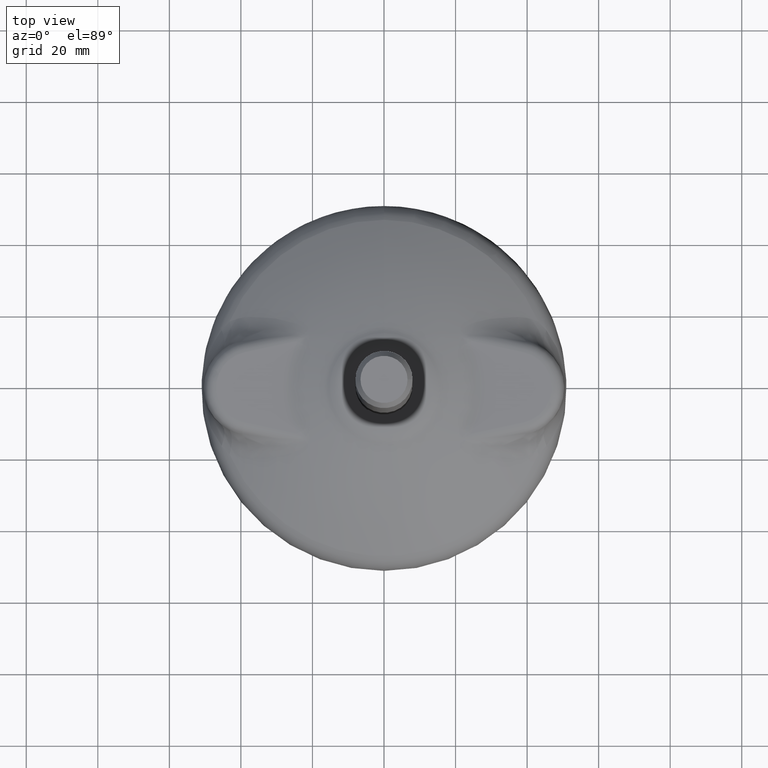
[diagram: clean part render]
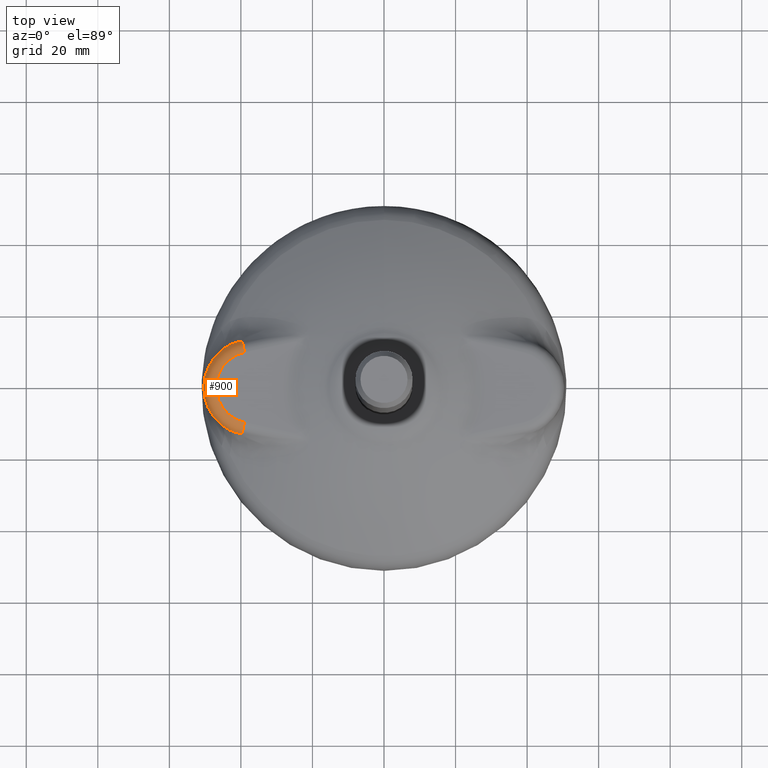
[diagram: same view with one face highlighted and labeled with its STEP entity id]
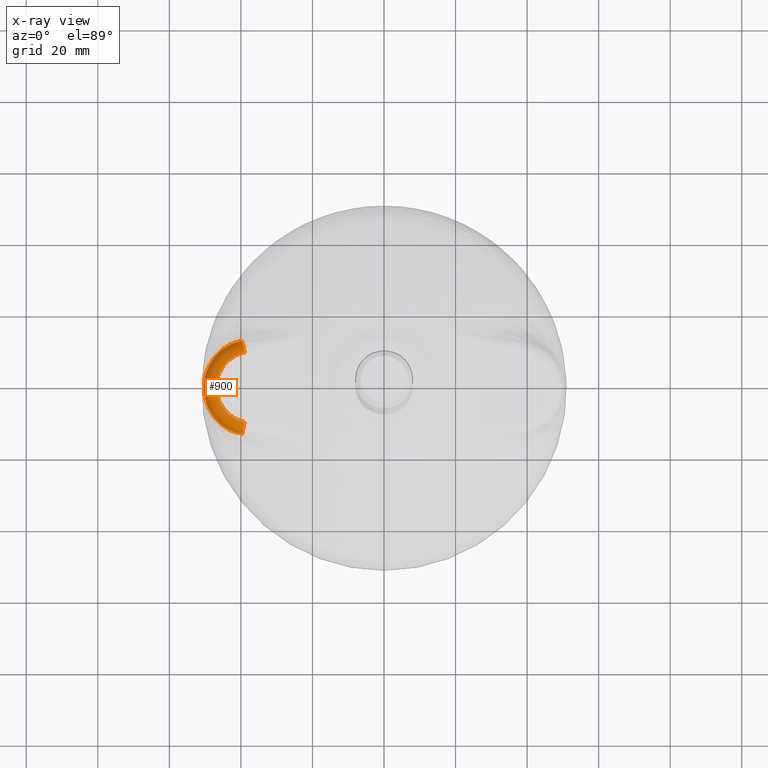
[diagram: x-ray of the same camera — body ghosted, the highlighted face saturated]
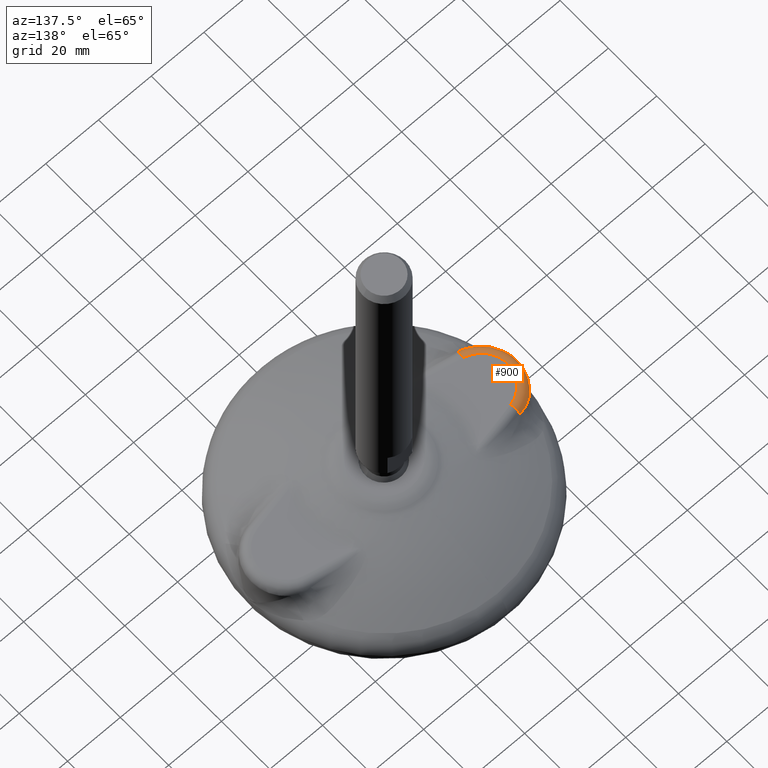
[diagram: same view with one face highlighted and labeled with its STEP entity id]
A machine part, top view. The second image highlights one B-rep face of the part: STEP entity #900.
The next image is the same camera in x-ray: the body ghosted, the highlighted face saturated — about 0% of this face is hidden behind the body in this view.
A second angle (auxiliary view) of the same face is appended — the face is thin or edge-on in the first view.
In plain terms, the highlighted toroidal blend (fillet) surface has major radius 9.9975 mm and minor (blend) radius 3.5 mm.
Its self-contained STEP definition (entity closure, byte-faithful):
#36=TOROIDAL_SURFACE('',#997,9.99751007502379,3.5);
#55=B_SPLINE_CURVE_WITH_KNOTS('',3,(#2142,#2143,#2144,#2145,#2146,#2147,
#2148,#2149),.UNSPECIFIED.,.F.,.F.,(4,2,2,4),(0.,0.500000000000003,0.750000000000001,
1.),.UNSPECIFIED.);
#56=B_SPLINE_CURVE_WITH_KNOTS('',3,(#2150,#2151,#2152,#2153,#2154,#2155,
#2156,#2157,#2158,#2159,#2160,#2161,#2162),.UNSPECIFIED.,.F.,.F.,(4,3,3,
3,4),(0.,0.275275861480388,0.556591254268268,0.845321846808826,1.),
 .UNSPECIFIED.);
#57=B_SPLINE_CURVE_WITH_KNOTS('',3,(#2164,#2165,#2166,#2167,#2168,#2169,
#2170,#2171,#2172,#2173,#2174,#2175,#2176),.UNSPECIFIED.,.F.,.F.,(4,3,3,
3,4),(0.,0.288180764930574,0.571541113506251,0.845720962163743,1.),
 .UNSPECIFIED.);
#58=B_SPLINE_CURVE_WITH_KNOTS('',3,(#2177,#2178,#2179,#2180,#2181,#2182,
#2183,#2184),.UNSPECIFIED.,.F.,.F.,(4,2,2,4),(0.,0.25,0.5,1.),
 .UNSPECIFIED.);
#151=FACE_OUTER_BOUND('',#217,.T.);
#217=EDGE_LOOP('',(#578,#579,#580,#581,#582,#583,#584,#585));
#281=CIRCLE('',#990,9.99751007502379);
#282=CIRCLE('',#992,3.5);
#283=CIRCLE('',#994,3.5);
#284=CIRCLE('',#996,13.4953779695906);
#354=VERTEX_POINT('',#1373);
#357=VERTEX_POINT('',#1378);
#358=VERTEX_POINT('',#1382);
#359=VERTEX_POINT('',#1623);
#360=VERTEX_POINT('',#1879);
#361=VERTEX_POINT('',#1880);
#363=VERTEX_POINT('',#2141);
#364=VERTEX_POINT('',#2163);
#438=EDGE_CURVE('',#357,#354,#281,.T.);
#440=EDGE_CURVE('',#357,#358,#282,.T.);
#441=EDGE_CURVE('',#354,#359,#283,.T.);
#443=EDGE_CURVE('',#360,#361,#284,.T.);
#446=EDGE_CURVE('',#358,#363,#55,.T.);
#447=EDGE_CURVE('',#363,#361,#56,.T.);
#448=EDGE_CURVE('',#360,#364,#57,.T.);
#449=EDGE_CURVE('',#364,#359,#58,.T.);
#578=ORIENTED_EDGE('',*,*,#440,.T.);
#579=ORIENTED_EDGE('',*,*,#446,.T.);
#580=ORIENTED_EDGE('',*,*,#447,.T.);
#581=ORIENTED_EDGE('',*,*,#443,.F.);
#582=ORIENTED_EDGE('',*,*,#448,.T.);
#583=ORIENTED_EDGE('',*,*,#449,.T.);
#584=ORIENTED_EDGE('',*,*,#441,.F.);
#585=ORIENTED_EDGE('',*,*,#438,.F.);
#900=ADVANCED_FACE('',(#151),#36,.T.);
#990=AXIS2_PLACEMENT_3D('',#1380,#1123,#1124);
#992=AXIS2_PLACEMENT_3D('',#1621,#1127,#1128);
#994=AXIS2_PLACEMENT_3D('',#1624,#1131,#1132);
#996=AXIS2_PLACEMENT_3D('',#1881,#1135,#1136);
#997=AXIS2_PLACEMENT_3D('',#2140,#1137,#1138);
#1123=DIRECTION('center_axis',(0.,0.,1.));
#1124=DIRECTION('ref_axis',(1.,0.,0.));
#1127=DIRECTION('center_axis',(-0.978147600734719,-0.207911690813461,0.));
#1128=DIRECTION('ref_axis',(0.207911690813461,-0.978147600734719,0.));
#1131=DIRECTION('center_axis',(0.978147600734717,-0.207911690813471,0.));
#1132=DIRECTION('ref_axis',(0.207911690813471,0.978147600734717,0.));
#1135=DIRECTION('center_axis',(0.,0.,-1.));
#1136=DIRECTION('ref_axis',(-1.,0.,0.));
#1137=DIRECTION('center_axis',(0.,0.,1.));
#1138=DIRECTION('ref_axis',(-1.,5.45153519811549E-15,0.));
#1373=CARTESIAN_POINT('',(-38.9785992236229,-9.77904049320534,18.));
#1378=CARTESIAN_POINT('',(-38.9785992236228,9.77904049320588,18.));
#1380=CARTESIAN_POINT('Origin',(-36.9,1.729065E-13,18.));
#1382=CARTESIAN_POINT('',(-39.6508092109383,12.9415398394909,15.840422178905));
#1621=CARTESIAN_POINT('Origin',(-38.9785992236228,9.77904049320589,14.5));
#1623=CARTESIAN_POINT('',(-39.6508092109384,-12.9415398394903,15.840422178905));
#1624=CARTESIAN_POINT('Origin',(-38.9785992236229,-9.77904049320535,14.5));
#1879=CARTESIAN_POINT('',(-45.3161728056291,-10.5495621638006,14.6221482384588));
#1880=CARTESIAN_POINT('',(-45.3161728056289,10.5495621638013,14.6221482384588));
#1881=CARTESIAN_POINT('Origin',(-36.9,1.729065E-13,14.6221482384588));
#2140=CARTESIAN_POINT('Origin',(-36.9,1.729065E-13,14.5));
#2141=CARTESIAN_POINT('',(-43.177831636212,11.8856961593077,15.1222012714982));
#2142=CARTESIAN_POINT('Ctrl Pts',(-39.6508092109383,12.9415398394909,15.840422178905));
#2143=CARTESIAN_POINT('Ctrl Pts',(-40.2643685165308,12.8651052942948,15.7130619363635));
#2144=CARTESIAN_POINT('Ctrl Pts',(-40.8648455038294,12.7372536191431,15.5894218539684));
#2145=CARTESIAN_POINT('Ctrl Pts',(-41.7471036689199,12.4725739153159,15.4096843504496));
#2146=CARTESIAN_POINT('Ctrl Pts',(-42.0380958107094,12.3721310075679,15.3507259515978));
#2147=CARTESIAN_POINT('Ctrl Pts',(-42.6138898258824,12.1467791847384,15.2347493119755));
#2148=CARTESIAN_POINT('Ctrl Pts',(-42.8986295414375,12.0218185054617,15.177745489979));
#2149=CARTESIAN_POINT('Ctrl Pts',(-43.177831636212,11.8856961593076,15.1222012714984));
#2150=CARTESIAN_POINT('Ctrl Pts',(-43.177831636212,11.8856961593077,15.1222012714982));
#2151=CARTESIAN_POINT('Ctrl Pts',(-43.3876872961686,11.7833830129466,15.0804527715974));
#2152=CARTESIAN_POINT('Ctrl Pts',(-43.5937658085506,11.6756013449991,15.0372839717312));
#2153=CARTESIAN_POINT('Ctrl Pts',(-43.7961037607142,11.5622684857303,14.9929213130747));
#2154=CARTESIAN_POINT('Ctrl Pts',(-44.0028809920438,11.4464491122134,14.9475853410867));
#2155=CARTESIAN_POINT('Ctrl Pts',(-44.2057518788406,11.3248316682938,14.9010026022959));
#2156=CARTESIAN_POINT('Ctrl Pts',(-44.4047122152688,11.1972962285575,14.8534293414554));
#2157=CARTESIAN_POINT('Ctrl Pts',(-44.6089169523779,11.0663990788493,14.8046020957955));
#2158=CARTESIAN_POINT('Ctrl Pts',(-44.8090024463881,10.9292672632963,14.7547315622153));
#2159=CARTESIAN_POINT('Ctrl Pts',(-45.0049164956581,10.7857473288898,14.7041085132305));
#2160=CARTESIAN_POINT('Ctrl Pts',(-45.1098711631169,10.7088611277956,14.6769888385989));
#2161=CARTESIAN_POINT('Ctrl Pts',(-45.2136278319587,10.6301412312584,14.6496534169828));
#2162=CARTESIAN_POINT('Ctrl Pts',(-45.3161728056289,10.5495621638014,14.6221482384588));
#2163=CARTESIAN_POINT('',(-43.1778316362122,-11.885696159307,15.1222012714984));
#2164=CARTESIAN_POINT('Ctrl Pts',(-45.3161728056292,-10.5495621638008,14.6221482384588));
#2165=CARTESIAN_POINT('Ctrl Pts',(-45.1251213329914,-10.6996889710976,14.6733931183792));
#2166=CARTESIAN_POINT('Ctrl Pts',(-44.9298667241062,-10.8433631753828,14.7240481551465));
#2167=CARTESIAN_POINT('Ctrl Pts',(-44.7304865208875,-10.9807462828013,14.7738182305145));
#2168=CARTESIAN_POINT('Ctrl Pts',(-44.5344413618821,-11.1158313750207,14.8227557989477));
#2169=CARTESIAN_POINT('Ctrl Pts',(-44.334407361003,-11.2448345977279,14.8708375657369));
#2170=CARTESIAN_POINT('Ctrl Pts',(-44.1304132281607,-11.36789188075,14.917794279228));
#2171=CARTESIAN_POINT('Ctrl Pts',(-43.9330282349856,-11.4869622708197,14.963229657407));
#2172=CARTESIAN_POINT('Ctrl Pts',(-43.7319353520967,-11.6004662560236,15.0076116327787));
#2173=CARTESIAN_POINT('Ctrl Pts',(-43.527120555882,-11.7085030109912,15.0507088206997));
#2174=CARTESIAN_POINT('Ctrl Pts',(-43.411872736433,-11.7692945195173,15.0749592997865));
#2175=CARTESIAN_POINT('Ctrl Pts',(-43.2954457601986,-11.8283545032183,15.0988032214071));
#2176=CARTESIAN_POINT('Ctrl Pts',(-43.1778316362122,-11.8856961593072,15.1222012714983));
#2177=CARTESIAN_POINT('Ctrl Pts',(-43.1778316362122,-11.885696159307,15.1222012714984));
#2178=CARTESIAN_POINT('Ctrl Pts',(-42.8986295414376,-12.0218185054611,15.177745489979));
#2179=CARTESIAN_POINT('Ctrl Pts',(-42.6138898258826,-12.1467791847378,15.2347493119755));
#2180=CARTESIAN_POINT('Ctrl Pts',(-42.0380958107095,-12.3721310075673,15.3507259515978));
#2181=CARTESIAN_POINT('Ctrl Pts',(-41.74710366892,-12.4725739153153,15.4096843504496));
#2182=CARTESIAN_POINT('Ctrl Pts',(-40.8648455038295,-12.7372536191425,15.5894218539684));
#2183=CARTESIAN_POINT('Ctrl Pts',(-40.2643685165309,-12.8651052942942,15.7130619363635));
#2184=CARTESIAN_POINT('Ctrl Pts',(-39.6508092109384,-12.9415398394903,15.840422178905));